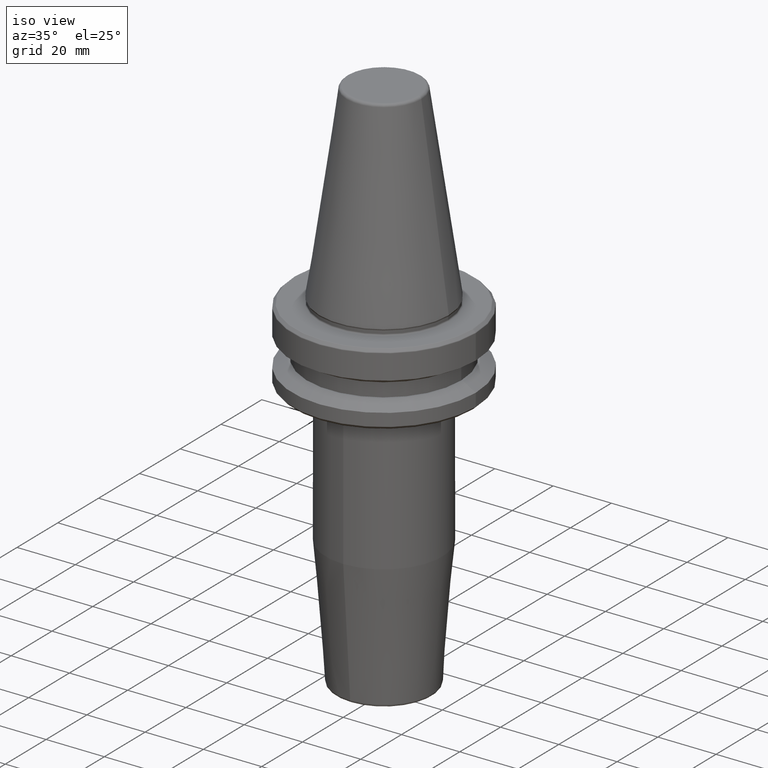
[diagram: clean part render]
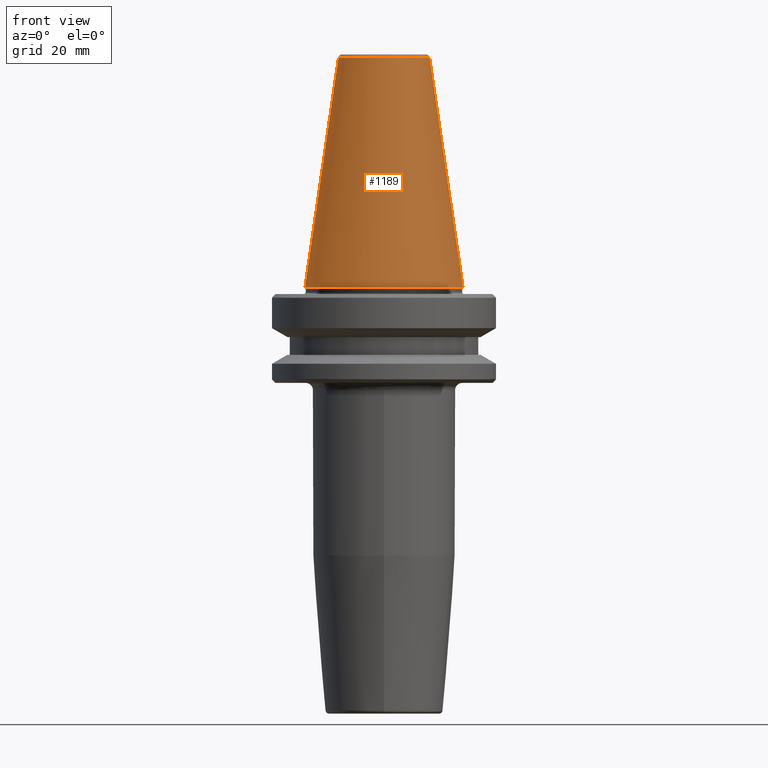
[diagram: tour spotlight — one face highlighted and labeled with its STEP entity id]
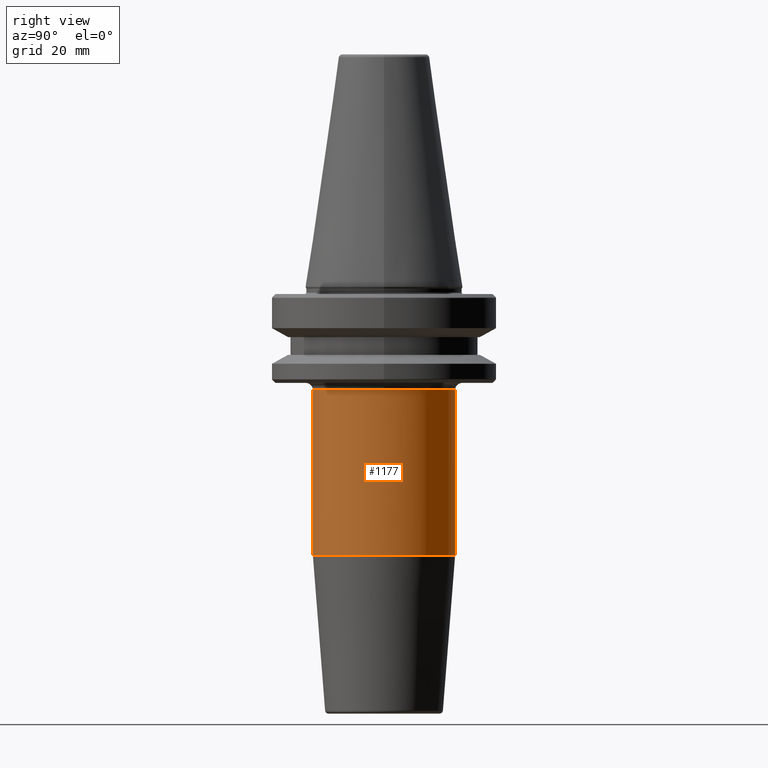
[diagram: tour spotlight — one face highlighted and labeled with its STEP entity id]
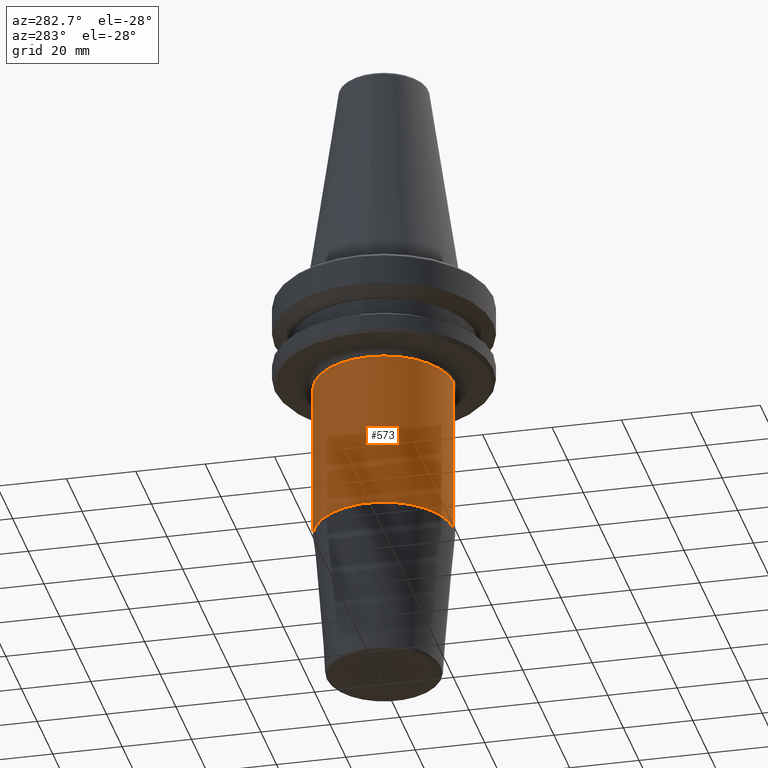
[diagram: tour spotlight — one face highlighted and labeled with its STEP entity id]
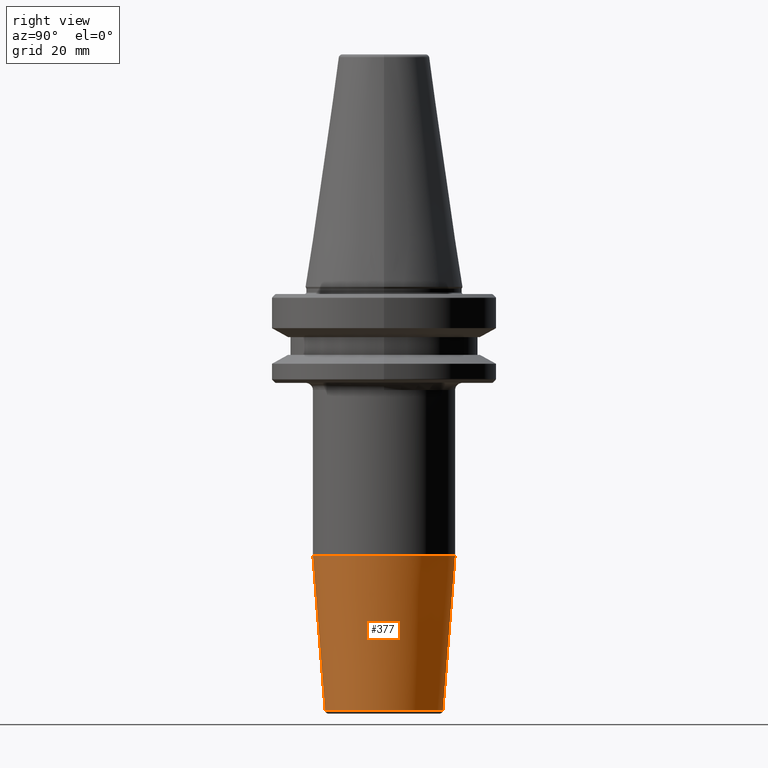
[diagram: tour spotlight — one face highlighted and labeled with its STEP entity id]
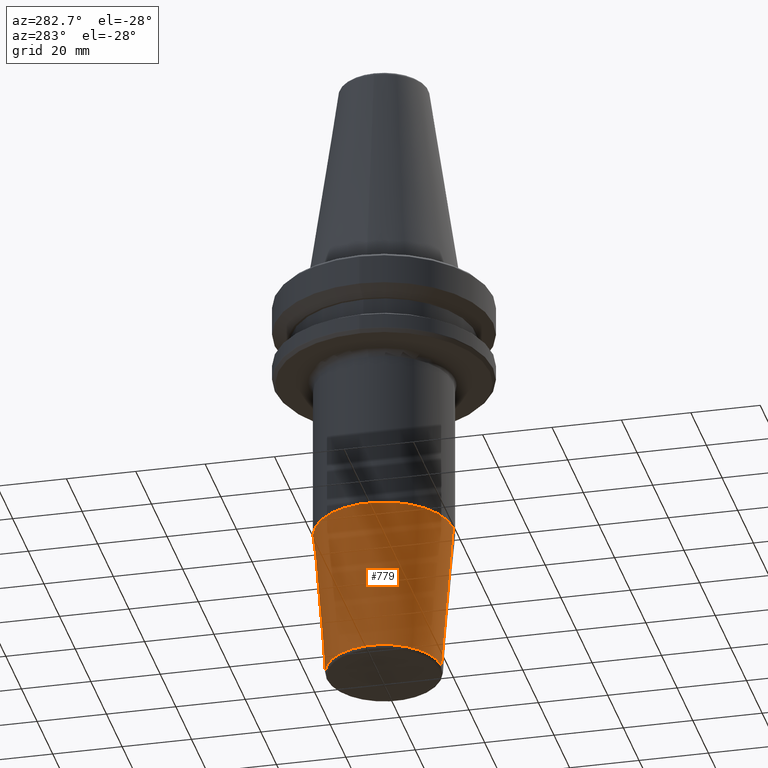
[diagram: tour spotlight — one face highlighted and labeled with its STEP entity id]
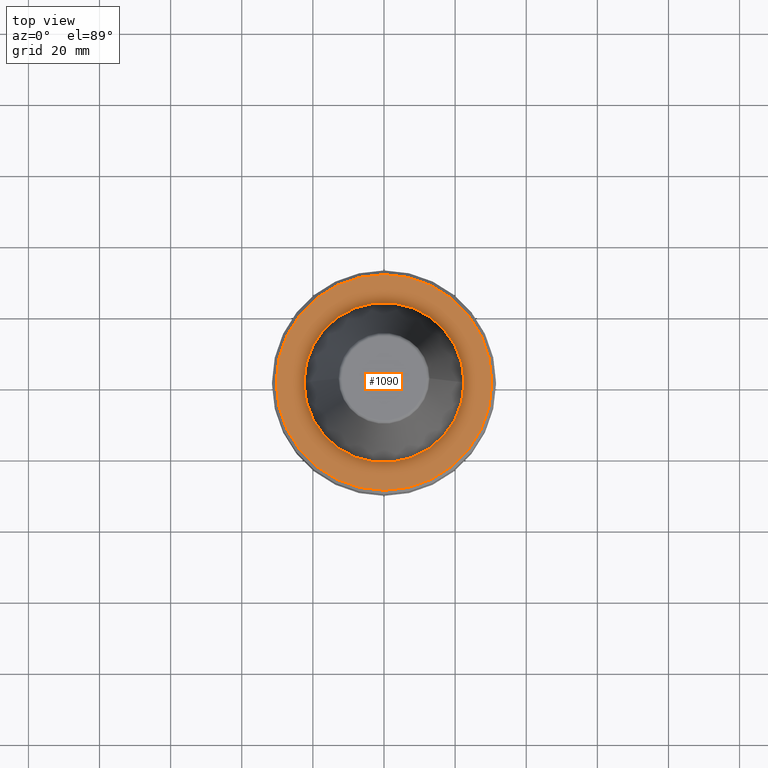
[diagram: tour spotlight — one face highlighted and labeled with its STEP entity id]
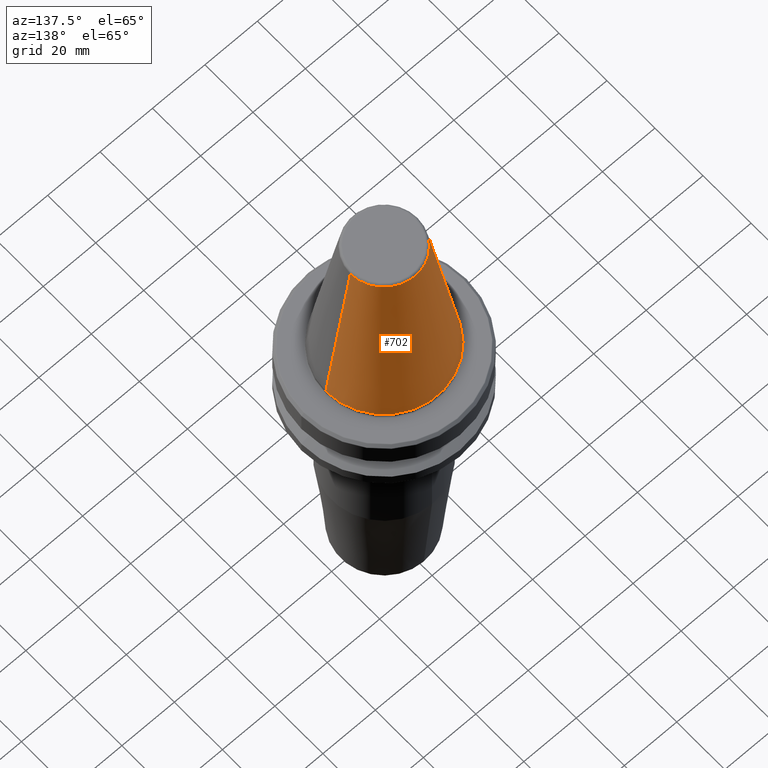
[diagram: tour spotlight — one face highlighted and labeled with its STEP entity id]
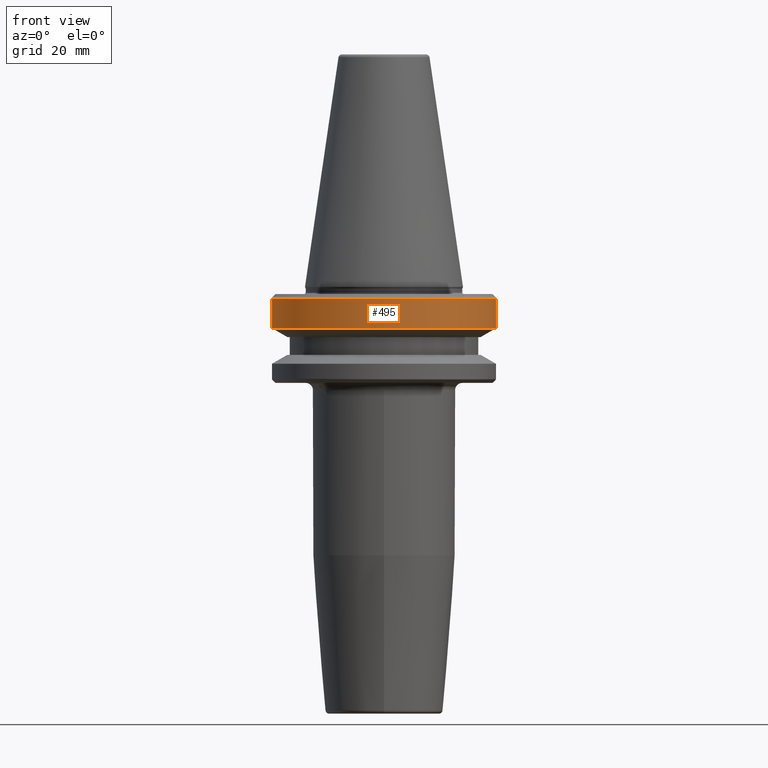
[diagram: tour spotlight — one face highlighted and labeled with its STEP entity id]
A machine part: a face-by-face anatomy tour. The part has 46 B-rep faces; the first image is the clean iso view, then the 8 largest visible faces are spotlighted one at a time (largest first), each with its STEP entity span.

Face 1 — front view, entity #1189. In plain terms, the highlighted conical surface has half-angle 8.297 deg.
Definition (entity closure, byte-faithful):
#83 = DIRECTION ( 'NONE',  ( 1.000000000000000000, 0.0000000000000000000, 0.0000000000000000000 ) ) ;
#159 = EDGE_CURVE ( 'NONE', #1194, #642, #989, .T. ) ;
#174 = ORIENTED_EDGE ( 'NONE', *, *, #1180, .F. ) ;
#178 = CARTESIAN_POINT ( 'NONE',  ( 12.81219950706224800, 2.145409711370550300E-015, 64.54430822726730800 ) ) ;
#190 = DIRECTION ( 'NONE',  ( 0.1443082272673071000, 1.767266086135364600E-017, -0.9895327864921743500 ) ) ;
#215 = CIRCLE ( 'NONE', #310, 12.81219950706224800 ) ;
#241 = AXIS2_PLACEMENT_3D ( 'NONE', #1065, #866, #1166 ) ;
#258 = DIRECTION ( 'NONE',  ( -0.1443082272673071000, 0.0000000000000000000, -0.9895327864921743500 ) ) ;
#310 = AXIS2_PLACEMENT_3D ( 'NONE', #567, #670, #83 ) ;
#342 = DIRECTION ( 'NONE',  ( 1.000000000000000000, 0.0000000000000000000, 0.0000000000000000000 ) ) ;
#344 = EDGE_LOOP ( 'NONE', ( #1028, #174, #833, #827 ) ) ;
#389 = CIRCLE ( 'NONE', #644, 22.22500000000000500 ) ;
#406 = CONICAL_SURFACE ( 'NONE', #241, 12.81219950706224800, 0.1448138465474191100 ) ;
#514 = CARTESIAN_POINT ( 'NONE',  ( -22.22500000000000500, 2.721777511104993200E-015, 0.0000000000000000000 ) ) ;
#547 = CARTESIAN_POINT ( 'NONE',  ( 0.0000000000000000000, 0.0000000000000000000, 0.0000000000000000000 ) ) ;
#567 = CARTESIAN_POINT ( 'NONE',  ( 0.0000000000000000000, 0.0000000000000000000, 64.54430822726730800 ) ) ;
#642 = VERTEX_POINT ( 'NONE', #1126 ) ;
#644 = AXIS2_PLACEMENT_3D ( 'NONE', #547, #837, #342 ) ;
#670 = DIRECTION ( 'NONE',  ( -0.0000000000000000000, -0.0000000000000000000, 1.000000000000000000 ) ) ;
#683 = VERTEX_POINT ( 'NONE', #514 ) ;
#718 = EDGE_CURVE ( 'NONE', #683, #642, #389, .T. ) ;
#827 = ORIENTED_EDGE ( 'NONE', *, *, #718, .T. ) ;
#833 = ORIENTED_EDGE ( 'NONE', *, *, #1272, .T. ) ;
#837 = DIRECTION ( 'NONE',  ( -0.0000000000000000000, -0.0000000000000000000, 1.000000000000000000 ) ) ;
#866 = DIRECTION ( 'NONE',  ( 0.0000000000000000000, 0.0000000000000000000, -1.000000000000000000 ) ) ;
#875 = VECTOR ( 'NONE', #258, 1000.000000000000000 ) ;
#878 = VERTEX_POINT ( 'NONE', #1120 ) ;
#883 = CARTESIAN_POINT ( 'NONE',  ( -12.81219950706224800, 0.0000000000000000000, 64.54430822726730800 ) ) ;
#886 = CARTESIAN_POINT ( 'NONE',  ( 12.81219950706224800, 1.569041911636107800E-015, 64.54430822726730800 ) ) ;
#989 = LINE ( 'NONE', #886, #1158 ) ;
#1028 = ORIENTED_EDGE ( 'NONE', *, *, #159, .F. ) ;
#1065 = CARTESIAN_POINT ( 'NONE',  ( 0.0000000000000000000, 0.0000000000000000000, 64.54430822726730800 ) ) ;
#1120 = CARTESIAN_POINT ( 'NONE',  ( -12.81219950706224800, 0.0000000000000000000, 64.54430822726730800 ) ) ;
#1126 = CARTESIAN_POINT ( 'NONE',  ( 22.22500000000000500, 0.0000000000000000000, 0.0000000000000000000 ) ) ;
#1143 = LINE ( 'NONE', #883, #875 ) ;
#1158 = VECTOR ( 'NONE', #190, 1000.000000000000000 ) ;
#1166 = DIRECTION ( 'NONE',  ( -1.000000000000000000, 0.0000000000000000000, 0.0000000000000000000 ) ) ;
#1180 = EDGE_CURVE ( 'NONE', #878, #1194, #215, .T. ) ;
#1189 = ADVANCED_FACE ( 'NONE', ( #1233 ), #406, .T. ) ;
#1194 = VERTEX_POINT ( 'NONE', #178 ) ;
#1233 = FACE_OUTER_BOUND ( 'NONE', #344, .T. ) ;
#1272 = EDGE_CURVE ( 'NONE', #878, #683, #1143, .T. ) ;

Face 2 — right view, entity #1177. In plain terms, the highlighted cylindrical surface (partial cylindrical patch) has radius 20 mm, axis along (-0, 0, -1).
Definition (entity closure, byte-faithful):
#17 = CIRCLE ( 'NONE', #621, 19.99999999999999600 ) ;
#46 = VECTOR ( 'NONE', #1045, 1000.000000000000000 ) ;
#49 = ORIENTED_EDGE ( 'NONE', *, *, #316, .T. ) ;
#134 = EDGE_LOOP ( 'NONE', ( #968, #49, #1183, #224, #701 ) ) ;
#212 = CARTESIAN_POINT ( 'NONE',  ( 0.0000000000000000000, 20.00000000000000000, -120.0000000000000000 ) ) ;
#224 = ORIENTED_EDGE ( 'NONE', *, *, #512, .F. ) ;
#251 = EDGE_CURVE ( 'NONE', #1044, #1018, #557, .T. ) ;
#267 = AXIS2_PLACEMENT_3D ( 'NONE', #345, #1240, #1043 ) ;
#273 = CARTESIAN_POINT ( 'NONE',  ( 0.0000000000000000000, -19.99999999999999600, -75.52828342338060000 ) ) ;
#278 = CARTESIAN_POINT ( 'NONE',  ( 2.449293598294706100E-015, -19.99999999999999300, -120.0000000000000000 ) ) ;
#316 = EDGE_CURVE ( 'NONE', #556, #419, #737, .T. ) ;
#345 = CARTESIAN_POINT ( 'NONE',  ( 0.0000000000000000000, 2.683935798309098700E-015, -75.52828342338060000 ) ) ;
#360 = AXIS2_PLACEMENT_3D ( 'NONE', #662, #455, #966 ) ;
#362 = DIRECTION ( 'NONE',  ( -0.0000000000000000000, 5.530662963891274600E-017, -1.000000000000000000 ) ) ;
#408 = LINE ( 'NONE', #278, #1171 ) ;
#419 = VERTEX_POINT ( 'NONE', #976 ) ;
#429 = CARTESIAN_POINT ( 'NONE',  ( 0.0000000000000000000, 1.106132592778247800E-016, -28.99999999999999600 ) ) ;
#432 = CYLINDRICAL_SURFACE ( 'NONE', #360, 19.99999999999999600 ) ;
#441 = EDGE_CURVE ( 'NONE', #419, #736, #408, .T. ) ;
#455 = DIRECTION ( 'NONE',  ( -0.0000000000000000000, 5.530662963891274600E-017, -1.000000000000000000 ) ) ;
#465 = FACE_OUTER_BOUND ( 'NONE', #134, .T. ) ;
#512 = EDGE_CURVE ( 'NONE', #1018, #736, #1079, .T. ) ;
#550 = DIRECTION ( 'NONE',  ( 0.0000000000000000000, 0.0000000000000000000, -1.000000000000000000 ) ) ;
#556 = VERTEX_POINT ( 'NONE', #869 ) ;
#557 = LINE ( 'NONE', #212, #46 ) ;
#621 = AXIS2_PLACEMENT_3D ( 'NONE', #730, #550, #841 ) ;
#630 = AXIS2_PLACEMENT_3D ( 'NONE', #429, #838, #1135 ) ;
#662 = CARTESIAN_POINT ( 'NONE',  ( 0.0000000000000000000, 5.143516556418884100E-015, -120.0000000000000000 ) ) ;
#701 = ORIENTED_EDGE ( 'NONE', *, *, #251, .F. ) ;
#730 = CARTESIAN_POINT ( 'NONE',  ( 0.0000000000000000000, 1.106132592778247800E-016, -28.99999999999999600 ) ) ;
#736 = VERTEX_POINT ( 'NONE', #273 ) ;
#737 = CIRCLE ( 'NONE', #630, 19.99999999999999600 ) ;
#838 = DIRECTION ( 'NONE',  ( 0.0000000000000000000, 0.0000000000000000000, -1.000000000000000000 ) ) ;
#841 = DIRECTION ( 'NONE',  ( -1.000000000000000000, 0.0000000000000000000, 0.0000000000000000000 ) ) ;
#869 = CARTESIAN_POINT ( 'NONE',  ( 19.99999999999999600, 2.682371537487266200E-015, -28.99999999999999600 ) ) ;
#870 = EDGE_CURVE ( 'NONE', #1044, #556, #17, .T. ) ;
#966 = DIRECTION ( 'NONE',  ( 0.0000000000000000000, 1.000000000000000000, 0.0000000000000000000 ) ) ;
#968 = ORIENTED_EDGE ( 'NONE', *, *, #870, .T. ) ;
#976 = CARTESIAN_POINT ( 'NONE',  ( 2.449293598294706100E-015, -19.99999999999999600, -28.99999999999999600 ) ) ;
#1018 = VERTEX_POINT ( 'NONE', #1078 ) ;
#1043 = DIRECTION ( 'NONE',  ( 0.0000000000000000000, 1.000000000000000000, 0.0000000000000000000 ) ) ;
#1044 = VERTEX_POINT ( 'NONE', #1047 ) ;
#1045 = DIRECTION ( 'NONE',  ( -0.0000000000000000000, 5.530662963891274600E-017, -1.000000000000000000 ) ) ;
#1047 = CARTESIAN_POINT ( 'NONE',  ( 0.0000000000000000000, 19.99999999999999600, -28.99999999999999600 ) ) ;
#1078 = CARTESIAN_POINT ( 'NONE',  ( 2.449293598294706100E-015, 19.99999999999999600, -75.52828342338060000 ) ) ;
#1079 = CIRCLE ( 'NONE', #267, 20.00000000000000000 ) ;
#1135 = DIRECTION ( 'NONE',  ( -1.000000000000000000, 0.0000000000000000000, 0.0000000000000000000 ) ) ;
#1171 = VECTOR ( 'NONE', #362, 1000.000000000000000 ) ;
#1177 = ADVANCED_FACE ( 'NONE', ( #465 ), #432, .T. ) ;
#1183 = ORIENTED_EDGE ( 'NONE', *, *, #441, .T. ) ;
#1240 = DIRECTION ( 'NONE',  ( -0.0000000000000000000, 5.530662963891274600E-017, -1.000000000000000000 ) ) ;

Face 3 — auxiliary view, entity #573. In plain terms, the highlighted cylindrical surface (partial cylindrical patch) has radius 20 mm, axis along (-0, 0, -1).
Definition (entity closure, byte-faithful):
#5 = DIRECTION ( 'NONE',  ( 0.0000000000000000000, 1.000000000000000000, 0.0000000000000000000 ) ) ;
#46 = VECTOR ( 'NONE', #1045, 1000.000000000000000 ) ;
#124 = ORIENTED_EDGE ( 'NONE', *, *, #1273, .F. ) ;
#126 = CIRCLE ( 'NONE', #765, 20.00000000000000000 ) ;
#212 = CARTESIAN_POINT ( 'NONE',  ( 0.0000000000000000000, 20.00000000000000000, -120.0000000000000000 ) ) ;
#232 = CARTESIAN_POINT ( 'NONE',  ( 0.0000000000000000000, 1.106132592778247800E-016, -28.99999999999999600 ) ) ;
#251 = EDGE_CURVE ( 'NONE', #1044, #1018, #557, .T. ) ;
#253 = EDGE_CURVE ( 'NONE', #1192, #1044, #308, .T. ) ;
#273 = CARTESIAN_POINT ( 'NONE',  ( 0.0000000000000000000, -19.99999999999999600, -75.52828342338060000 ) ) ;
#278 = CARTESIAN_POINT ( 'NONE',  ( 2.449293598294706100E-015, -19.99999999999999300, -120.0000000000000000 ) ) ;
#285 = CARTESIAN_POINT ( 'NONE',  ( 0.0000000000000000000, 2.683935798309098700E-015, -75.52828342338060000 ) ) ;
#294 = ORIENTED_EDGE ( 'NONE', *, *, #251, .T. ) ;
#308 = CIRCLE ( 'NONE', #492, 19.99999999999999600 ) ;
#324 = ORIENTED_EDGE ( 'NONE', *, *, #441, .F. ) ;
#362 = DIRECTION ( 'NONE',  ( -0.0000000000000000000, 5.530662963891274600E-017, -1.000000000000000000 ) ) ;
#408 = LINE ( 'NONE', #278, #1171 ) ;
#419 = VERTEX_POINT ( 'NONE', #976 ) ;
#441 = EDGE_CURVE ( 'NONE', #419, #736, #408, .T. ) ;
#492 = AXIS2_PLACEMENT_3D ( 'NONE', #640, #694, #996 ) ;
#557 = LINE ( 'NONE', #212, #46 ) ;
#568 = CARTESIAN_POINT ( 'NONE',  ( 0.0000000000000000000, 5.143516556418884100E-015, -120.0000000000000000 ) ) ;
#573 = ADVANCED_FACE ( 'NONE', ( #1280 ), #747, .T. ) ;
#586 = DIRECTION ( 'NONE',  ( -0.0000000000000000000, 5.530662963891274600E-017, -1.000000000000000000 ) ) ;
#606 = EDGE_CURVE ( 'NONE', #419, #1192, #988, .T. ) ;
#640 = CARTESIAN_POINT ( 'NONE',  ( 0.0000000000000000000, 1.106132592778247800E-016, -28.99999999999999600 ) ) ;
#694 = DIRECTION ( 'NONE',  ( 0.0000000000000000000, 0.0000000000000000000, -1.000000000000000000 ) ) ;
#736 = VERTEX_POINT ( 'NONE', #273 ) ;
#745 = ORIENTED_EDGE ( 'NONE', *, *, #606, .T. ) ;
#747 = CYLINDRICAL_SURFACE ( 'NONE', #938, 19.99999999999999600 ) ;
#765 = AXIS2_PLACEMENT_3D ( 'NONE', #285, #586, #5 ) ;
#813 = DIRECTION ( 'NONE',  ( 0.0000000000000000000, 1.000000000000000000, 0.0000000000000000000 ) ) ;
#828 = DIRECTION ( 'NONE',  ( -1.000000000000000000, 0.0000000000000000000, 0.0000000000000000000 ) ) ;
#867 = AXIS2_PLACEMENT_3D ( 'NONE', #232, #933, #828 ) ;
#933 = DIRECTION ( 'NONE',  ( 0.0000000000000000000, 0.0000000000000000000, -1.000000000000000000 ) ) ;
#938 = AXIS2_PLACEMENT_3D ( 'NONE', #568, #1144, #813 ) ;
#976 = CARTESIAN_POINT ( 'NONE',  ( 2.449293598294706100E-015, -19.99999999999999600, -28.99999999999999600 ) ) ;
#988 = CIRCLE ( 'NONE', #867, 19.99999999999999600 ) ;
#996 = DIRECTION ( 'NONE',  ( -1.000000000000000000, 0.0000000000000000000, 0.0000000000000000000 ) ) ;
#1018 = VERTEX_POINT ( 'NONE', #1078 ) ;
#1044 = VERTEX_POINT ( 'NONE', #1047 ) ;
#1045 = DIRECTION ( 'NONE',  ( -0.0000000000000000000, 5.530662963891274600E-017, -1.000000000000000000 ) ) ;
#1047 = CARTESIAN_POINT ( 'NONE',  ( 0.0000000000000000000, 19.99999999999999600, -28.99999999999999600 ) ) ;
#1078 = CARTESIAN_POINT ( 'NONE',  ( 2.449293598294706100E-015, 19.99999999999999600, -75.52828342338060000 ) ) ;
#1144 = DIRECTION ( 'NONE',  ( -0.0000000000000000000, 5.530662963891274600E-017, -1.000000000000000000 ) ) ;
#1162 = EDGE_LOOP ( 'NONE', ( #324, #745, #1165, #294, #124 ) ) ;
#1165 = ORIENTED_EDGE ( 'NONE', *, *, #253, .T. ) ;
#1171 = VECTOR ( 'NONE', #362, 1000.000000000000000 ) ;
#1192 = VERTEX_POINT ( 'NONE', #1267 ) ;
#1267 = CARTESIAN_POINT ( 'NONE',  ( -19.99999999999999600, 1.106132592778247800E-016, -28.99999999999999600 ) ) ;
#1273 = EDGE_CURVE ( 'NONE', #736, #1018, #126, .T. ) ;
#1280 = FACE_OUTER_BOUND ( 'NONE', #1162, .T. ) ;

Face 4 — right view, entity #377. In plain terms, the highlighted conical surface has half-angle 4.5 deg.
Definition (entity closure, byte-faithful):
#9 = EDGE_CURVE ( 'NONE', #1029, #736, #521, .T. ) ;
#120 = DIRECTION ( 'NONE',  ( -0.0000000000000000000, 5.530662963891274600E-017, -1.000000000000000000 ) ) ;
#147 = VERTEX_POINT ( 'NONE', #485 ) ;
#186 = DIRECTION ( 'NONE',  ( 0.0000000000000000000, -1.000000000000000000, 0.0000000000000000000 ) ) ;
#211 = EDGE_CURVE ( 'NONE', #147, #1029, #333, .T. ) ;
#227 = ORIENTED_EDGE ( 'NONE', *, *, #512, .T. ) ;
#257 = VECTOR ( 'NONE', #509, 1000.000000000000100 ) ;
#267 = AXIS2_PLACEMENT_3D ( 'NONE', #345, #1240, #1043 ) ;
#273 = CARTESIAN_POINT ( 'NONE',  ( 0.0000000000000000000, -19.99999999999999600, -75.52828342338060000 ) ) ;
#284 = LINE ( 'NONE', #972, #520 ) ;
#296 = AXIS2_PLACEMENT_3D ( 'NONE', #710, #120, #1108 ) ;
#333 = CIRCLE ( 'NONE', #296, 16.57252684207490400 ) ;
#345 = CARTESIAN_POINT ( 'NONE',  ( 0.0000000000000000000, 2.683935798309098700E-015, -75.52828342338060000 ) ) ;
#377 = ADVANCED_FACE ( 'NONE', ( #971 ), #671, .T. ) ;
#485 = CARTESIAN_POINT ( 'NONE',  ( 0.0000000000000000000, 16.57252684207491100, -119.0784590957278200 ) ) ;
#509 = DIRECTION ( 'NONE',  ( 0.0000000000000000000, -0.07845909572783114900, 0.9969173337331289600 ) ) ;
#512 = EDGE_CURVE ( 'NONE', #1018, #736, #1079, .T. ) ;
#520 = VECTOR ( 'NONE', #766, 1000.000000000000100 ) ;
#521 = LINE ( 'NONE', #1010, #257 ) ;
#541 = ORIENTED_EDGE ( 'NONE', *, *, #211, .F. ) ;
#572 = EDGE_CURVE ( 'NONE', #147, #1018, #284, .T. ) ;
#671 = CONICAL_SURFACE ( 'NONE', #1230, 16.57252684207490400, 0.07853981633973093600 ) ;
#695 = EDGE_LOOP ( 'NONE', ( #541, #1054, #227, #912 ) ) ;
#710 = CARTESIAN_POINT ( 'NONE',  ( 0.0000000000000000000, 5.092549234929195400E-015, -119.0784590957278200 ) ) ;
#736 = VERTEX_POINT ( 'NONE', #273 ) ;
#756 = DIRECTION ( 'NONE',  ( 0.0000000000000000000, -5.530662963891274600E-017, 1.000000000000000000 ) ) ;
#766 = DIRECTION ( 'NONE',  ( 9.608468044708411000E-018, 0.07845909572783103800, 0.9969173337331289600 ) ) ;
#912 = ORIENTED_EDGE ( 'NONE', *, *, #9, .F. ) ;
#971 = FACE_OUTER_BOUND ( 'NONE', #695, .T. ) ;
#972 = CARTESIAN_POINT ( 'NONE',  ( 2.029549195093062500E-015, 16.57252684207490700, -119.0784590957278200 ) ) ;
#980 = CARTESIAN_POINT ( 'NONE',  ( 2.029549195093062900E-015, -16.57252684207490000, -119.0784590957278200 ) ) ;
#1010 = CARTESIAN_POINT ( 'NONE',  ( 0.0000000000000000000, -16.57252684207490000, -119.0784590957278200 ) ) ;
#1018 = VERTEX_POINT ( 'NONE', #1078 ) ;
#1029 = VERTEX_POINT ( 'NONE', #980 ) ;
#1043 = DIRECTION ( 'NONE',  ( 0.0000000000000000000, 1.000000000000000000, 0.0000000000000000000 ) ) ;
#1054 = ORIENTED_EDGE ( 'NONE', *, *, #572, .T. ) ;
#1078 = CARTESIAN_POINT ( 'NONE',  ( 2.449293598294706100E-015, 19.99999999999999600, -75.52828342338060000 ) ) ;
#1079 = CIRCLE ( 'NONE', #267, 20.00000000000000000 ) ;
#1108 = DIRECTION ( 'NONE',  ( 0.0000000000000000000, 1.000000000000000000, 0.0000000000000000000 ) ) ;
#1230 = AXIS2_PLACEMENT_3D ( 'NONE', #1270, #756, #186 ) ;
#1240 = DIRECTION ( 'NONE',  ( -0.0000000000000000000, 5.530662963891274600E-017, -1.000000000000000000 ) ) ;
#1270 = CARTESIAN_POINT ( 'NONE',  ( 0.0000000000000000000, 5.092549234929195400E-015, -119.0784590957278200 ) ) ;

Face 5 — auxiliary view, entity #779. In plain terms, the highlighted conical surface has half-angle 4.5 deg.
Definition (entity closure, byte-faithful):
#5 = DIRECTION ( 'NONE',  ( 0.0000000000000000000, 1.000000000000000000, 0.0000000000000000000 ) ) ;
#9 = EDGE_CURVE ( 'NONE', #1029, #736, #521, .T. ) ;
#45 = AXIS2_PLACEMENT_3D ( 'NONE', #359, #649, #1063 ) ;
#70 = FACE_OUTER_BOUND ( 'NONE', #1008, .T. ) ;
#126 = CIRCLE ( 'NONE', #765, 20.00000000000000000 ) ;
#147 = VERTEX_POINT ( 'NONE', #485 ) ;
#157 = ORIENTED_EDGE ( 'NONE', *, *, #572, .F. ) ;
#257 = VECTOR ( 'NONE', #509, 1000.000000000000100 ) ;
#273 = CARTESIAN_POINT ( 'NONE',  ( 0.0000000000000000000, -19.99999999999999600, -75.52828342338060000 ) ) ;
#284 = LINE ( 'NONE', #972, #520 ) ;
#285 = CARTESIAN_POINT ( 'NONE',  ( 0.0000000000000000000, 2.683935798309098700E-015, -75.52828342338060000 ) ) ;
#359 = CARTESIAN_POINT ( 'NONE',  ( 0.0000000000000000000, 5.092549234929195400E-015, -119.0784590957278200 ) ) ;
#437 = DIRECTION ( 'NONE',  ( 0.0000000000000000000, -1.000000000000000000, 0.0000000000000000000 ) ) ;
#485 = CARTESIAN_POINT ( 'NONE',  ( 0.0000000000000000000, 16.57252684207491100, -119.0784590957278200 ) ) ;
#509 = DIRECTION ( 'NONE',  ( 0.0000000000000000000, -0.07845909572783114900, 0.9969173337331289600 ) ) ;
#520 = VECTOR ( 'NONE', #766, 1000.000000000000100 ) ;
#521 = LINE ( 'NONE', #1010, #257 ) ;
#572 = EDGE_CURVE ( 'NONE', #147, #1018, #284, .T. ) ;
#586 = DIRECTION ( 'NONE',  ( -0.0000000000000000000, 5.530662963891274600E-017, -1.000000000000000000 ) ) ;
#622 = ORIENTED_EDGE ( 'NONE', *, *, #1146, .F. ) ;
#649 = DIRECTION ( 'NONE',  ( -0.0000000000000000000, 5.530662963891274600E-017, -1.000000000000000000 ) ) ;
#729 = DIRECTION ( 'NONE',  ( 0.0000000000000000000, -5.530662963891274600E-017, 1.000000000000000000 ) ) ;
#736 = VERTEX_POINT ( 'NONE', #273 ) ;
#765 = AXIS2_PLACEMENT_3D ( 'NONE', #285, #586, #5 ) ;
#766 = DIRECTION ( 'NONE',  ( 9.608468044708411000E-018, 0.07845909572783103800, 0.9969173337331289600 ) ) ;
#779 = ADVANCED_FACE ( 'NONE', ( #70 ), #801, .T. ) ;
#801 = CONICAL_SURFACE ( 'NONE', #978, 16.57252684207490400, 0.07853981633973093600 ) ;
#815 = ORIENTED_EDGE ( 'NONE', *, *, #1273, .T. ) ;
#821 = CARTESIAN_POINT ( 'NONE',  ( 0.0000000000000000000, 5.092549234929195400E-015, -119.0784590957278200 ) ) ;
#964 = ORIENTED_EDGE ( 'NONE', *, *, #9, .T. ) ;
#972 = CARTESIAN_POINT ( 'NONE',  ( 2.029549195093062500E-015, 16.57252684207490700, -119.0784590957278200 ) ) ;
#978 = AXIS2_PLACEMENT_3D ( 'NONE', #821, #729, #437 ) ;
#980 = CARTESIAN_POINT ( 'NONE',  ( 2.029549195093062900E-015, -16.57252684207490000, -119.0784590957278200 ) ) ;
#1008 = EDGE_LOOP ( 'NONE', ( #157, #622, #964, #815 ) ) ;
#1010 = CARTESIAN_POINT ( 'NONE',  ( 0.0000000000000000000, -16.57252684207490000, -119.0784590957278200 ) ) ;
#1018 = VERTEX_POINT ( 'NONE', #1078 ) ;
#1029 = VERTEX_POINT ( 'NONE', #980 ) ;
#1059 = CIRCLE ( 'NONE', #45, 16.57252684207490400 ) ;
#1063 = DIRECTION ( 'NONE',  ( 0.0000000000000000000, 1.000000000000000000, 0.0000000000000000000 ) ) ;
#1078 = CARTESIAN_POINT ( 'NONE',  ( 2.449293598294706100E-015, 19.99999999999999600, -75.52828342338060000 ) ) ;
#1146 = EDGE_CURVE ( 'NONE', #1029, #147, #1059, .T. ) ;
#1273 = EDGE_CURVE ( 'NONE', #736, #1018, #126, .T. ) ;

Face 6 — top view, entity #1090. In plain terms, the highlighted planar face has unit normal (0, -0, 1).
Definition (entity closure, byte-faithful):
#42 = FACE_OUTER_BOUND ( 'NONE', #1253, .T. ) ;
#63 = DIRECTION ( 'NONE',  ( 0.0000000000000000000, -0.0000000000000000000, 1.000000000000000000 ) ) ;
#66 = DIRECTION ( 'NONE',  ( -0.0000000000000000000, -0.0000000000000000000, 1.000000000000000000 ) ) ;
#101 = CARTESIAN_POINT ( 'NONE',  ( 30.33431457505076200, 0.0000000000000000000, -2.000000000000001800 ) ) ;
#130 = EDGE_CURVE ( 'NONE', #763, #499, #655, .T. ) ;
#172 = VERTEX_POINT ( 'NONE', #101 ) ;
#216 = CIRCLE ( 'NONE', #748, 30.33431457505076200 ) ;
#225 = CARTESIAN_POINT ( 'NONE',  ( 0.0000000000000000000, 0.0000000000000000000, -2.000000000000001800 ) ) ;
#280 = DIRECTION ( 'NONE',  ( 1.000000000000000000, 0.0000000000000000000, 0.0000000000000000000 ) ) ;
#290 = DIRECTION ( 'NONE',  ( 1.000000000000000000, 0.0000000000000000000, 0.0000000000000000000 ) ) ;
#341 = EDGE_LOOP ( 'NONE', ( #435, #851 ) ) ;
#350 = CARTESIAN_POINT ( 'NONE',  ( 0.0000000000000000000, 0.0000000000000000000, -2.000000000000002700 ) ) ;
#372 = DIRECTION ( 'NONE',  ( -0.0000000000000000000, -0.0000000000000000000, 1.000000000000000000 ) ) ;
#383 = CARTESIAN_POINT ( 'NONE',  ( 0.0000000000000000000, 0.0000000000000000000, -2.000000000000001800 ) ) ;
#435 = ORIENTED_EDGE ( 'NONE', *, *, #130, .F. ) ;
#444 = DIRECTION ( 'NONE',  ( 1.000000000000000000, 0.0000000000000000000, 0.0000000000000000000 ) ) ;
#499 = VERTEX_POINT ( 'NONE', #885 ) ;
#542 = ORIENTED_EDGE ( 'NONE', *, *, #1214, .T. ) ;
#544 = CARTESIAN_POINT ( 'NONE',  ( 0.0000000000000000000, 0.0000000000000000000, -2.000000000000001800 ) ) ;
#561 = AXIS2_PLACEMENT_3D ( 'NONE', #977, #372, #280 ) ;
#580 = ORIENTED_EDGE ( 'NONE', *, *, #895, .T. ) ;
#655 = CIRCLE ( 'NONE', #1051, 22.50000000000000000 ) ;
#708 = CIRCLE ( 'NONE', #561, 30.33431457505076200 ) ;
#748 = AXIS2_PLACEMENT_3D ( 'NONE', #225, #1265, #947 ) ;
#754 = DIRECTION ( 'NONE',  ( 1.000000000000000000, 0.0000000000000000000, 0.0000000000000000000 ) ) ;
#763 = VERTEX_POINT ( 'NONE', #1032 ) ;
#784 = DIRECTION ( 'NONE',  ( -0.0000000000000000000, -0.0000000000000000000, 1.000000000000000000 ) ) ;
#800 = FACE_BOUND ( 'NONE', #341, .T. ) ;
#851 = ORIENTED_EDGE ( 'NONE', *, *, #1102, .F. ) ;
#885 = CARTESIAN_POINT ( 'NONE',  ( -22.50000000000000000, 2.755455298081544800E-015, -2.000000000000001300 ) ) ;
#895 = EDGE_CURVE ( 'NONE', #172, #1129, #216, .T. ) ;
#947 = DIRECTION ( 'NONE',  ( 1.000000000000000000, 0.0000000000000000000, 0.0000000000000000000 ) ) ;
#960 = CARTESIAN_POINT ( 'NONE',  ( -30.33431457505076200, 3.732201245991191800E-015, -2.000000000000001800 ) ) ;
#977 = CARTESIAN_POINT ( 'NONE',  ( 0.0000000000000000000, 0.0000000000000000000, -2.000000000000001800 ) ) ;
#999 = AXIS2_PLACEMENT_3D ( 'NONE', #350, #63, #444 ) ;
#1032 = CARTESIAN_POINT ( 'NONE',  ( 22.50000000000000000, 0.0000000000000000000, -2.000000000000001300 ) ) ;
#1036 = CIRCLE ( 'NONE', #1057, 22.50000000000000000 ) ;
#1051 = AXIS2_PLACEMENT_3D ( 'NONE', #383, #784, #290 ) ;
#1057 = AXIS2_PLACEMENT_3D ( 'NONE', #544, #66, #754 ) ;
#1090 = ADVANCED_FACE ( 'NONE', ( #42, #800 ), #1151, .T. ) ;
#1102 = EDGE_CURVE ( 'NONE', #499, #763, #1036, .T. ) ;
#1129 = VERTEX_POINT ( 'NONE', #960 ) ;
#1151 = PLANE ( 'NONE',  #999 ) ;
#1214 = EDGE_CURVE ( 'NONE', #1129, #172, #708, .T. ) ;
#1253 = EDGE_LOOP ( 'NONE', ( #580, #542 ) ) ;
#1265 = DIRECTION ( 'NONE',  ( -0.0000000000000000000, -0.0000000000000000000, 1.000000000000000000 ) ) ;

Face 7 — auxiliary view, entity #702. In plain terms, the highlighted conical surface has half-angle 8.297 deg.
Definition (entity closure, byte-faithful):
#50 = AXIS2_PLACEMENT_3D ( 'NONE', #329, #1229, #673 ) ;
#159 = EDGE_CURVE ( 'NONE', #1194, #642, #989, .T. ) ;
#178 = CARTESIAN_POINT ( 'NONE',  ( 12.81219950706224800, 2.145409711370550300E-015, 64.54430822726730800 ) ) ;
#190 = DIRECTION ( 'NONE',  ( 0.1443082272673071000, 1.767266086135364600E-017, -0.9895327864921743500 ) ) ;
#213 = ORIENTED_EDGE ( 'NONE', *, *, #647, .F. ) ;
#258 = DIRECTION ( 'NONE',  ( -0.1443082272673071000, 0.0000000000000000000, -0.9895327864921743500 ) ) ;
#329 = CARTESIAN_POINT ( 'NONE',  ( 0.0000000000000000000, 0.0000000000000000000, 64.54430822726730800 ) ) ;
#330 = CONICAL_SURFACE ( 'NONE', #367, 12.81219950706224800, 0.1448138465474191100 ) ;
#363 = ORIENTED_EDGE ( 'NONE', *, *, #159, .T. ) ;
#367 = AXIS2_PLACEMENT_3D ( 'NONE', #1021, #742, #410 ) ;
#410 = DIRECTION ( 'NONE',  ( -1.000000000000000000, 0.0000000000000000000, 0.0000000000000000000 ) ) ;
#413 = DIRECTION ( 'NONE',  ( -0.0000000000000000000, -0.0000000000000000000, 1.000000000000000000 ) ) ;
#513 = CARTESIAN_POINT ( 'NONE',  ( 0.0000000000000000000, 0.0000000000000000000, 0.0000000000000000000 ) ) ;
#514 = CARTESIAN_POINT ( 'NONE',  ( -22.22500000000000500, 2.721777511104993200E-015, 0.0000000000000000000 ) ) ;
#616 = DIRECTION ( 'NONE',  ( 1.000000000000000000, 0.0000000000000000000, 0.0000000000000000000 ) ) ;
#642 = VERTEX_POINT ( 'NONE', #1126 ) ;
#647 = EDGE_CURVE ( 'NONE', #1194, #878, #1224, .T. ) ;
#650 = ORIENTED_EDGE ( 'NONE', *, *, #1272, .F. ) ;
#673 = DIRECTION ( 'NONE',  ( 1.000000000000000000, 0.0000000000000000000, 0.0000000000000000000 ) ) ;
#683 = VERTEX_POINT ( 'NONE', #514 ) ;
#702 = ADVANCED_FACE ( 'NONE', ( #929 ), #330, .T. ) ;
#722 = CIRCLE ( 'NONE', #1152, 22.22500000000000500 ) ;
#726 = EDGE_LOOP ( 'NONE', ( #213, #363, #1243, #650 ) ) ;
#742 = DIRECTION ( 'NONE',  ( 0.0000000000000000000, 0.0000000000000000000, -1.000000000000000000 ) ) ;
#875 = VECTOR ( 'NONE', #258, 1000.000000000000000 ) ;
#878 = VERTEX_POINT ( 'NONE', #1120 ) ;
#883 = CARTESIAN_POINT ( 'NONE',  ( -12.81219950706224800, 0.0000000000000000000, 64.54430822726730800 ) ) ;
#886 = CARTESIAN_POINT ( 'NONE',  ( 12.81219950706224800, 1.569041911636107800E-015, 64.54430822726730800 ) ) ;
#929 = FACE_OUTER_BOUND ( 'NONE', #726, .T. ) ;
#961 = EDGE_CURVE ( 'NONE', #642, #683, #722, .T. ) ;
#989 = LINE ( 'NONE', #886, #1158 ) ;
#1021 = CARTESIAN_POINT ( 'NONE',  ( 0.0000000000000000000, 0.0000000000000000000, 64.54430822726730800 ) ) ;
#1120 = CARTESIAN_POINT ( 'NONE',  ( -12.81219950706224800, 0.0000000000000000000, 64.54430822726730800 ) ) ;
#1126 = CARTESIAN_POINT ( 'NONE',  ( 22.22500000000000500, 0.0000000000000000000, 0.0000000000000000000 ) ) ;
#1143 = LINE ( 'NONE', #883, #875 ) ;
#1152 = AXIS2_PLACEMENT_3D ( 'NONE', #513, #413, #616 ) ;
#1158 = VECTOR ( 'NONE', #190, 1000.000000000000000 ) ;
#1194 = VERTEX_POINT ( 'NONE', #178 ) ;
#1224 = CIRCLE ( 'NONE', #50, 12.81219950706224800 ) ;
#1229 = DIRECTION ( 'NONE',  ( -0.0000000000000000000, -0.0000000000000000000, 1.000000000000000000 ) ) ;
#1243 = ORIENTED_EDGE ( 'NONE', *, *, #961, .T. ) ;
#1272 = EDGE_CURVE ( 'NONE', #878, #683, #1143, .T. ) ;

Face 8 — front view, entity #495. In plain terms, the highlighted cylindrical surface (partial cylindrical patch) has radius 31.5 mm, axis along (-0, -0, 1).
Definition (entity closure, byte-faithful):
#21 = DIRECTION ( 'NONE',  ( -0.0000000000000000000, -0.0000000000000000000, 1.000000000000000000 ) ) ;
#37 = EDGE_CURVE ( 'NONE', #770, #291, #230, .T. ) ;
#142 = DIRECTION ( 'NONE',  ( 1.000000000000000000, 0.0000000000000000000, 0.0000000000000000000 ) ) ;
#162 = CIRCLE ( 'NONE', #179, 31.49999999999999300 ) ;
#179 = AXIS2_PLACEMENT_3D ( 'NONE', #418, #1067, #142 ) ;
#194 = VECTOR ( 'NONE', #525, 1000.000000000000000 ) ;
#230 = LINE ( 'NONE', #806, #1249 ) ;
#279 = ORIENTED_EDGE ( 'NONE', *, *, #645, .T. ) ;
#291 = VERTEX_POINT ( 'NONE', #519 ) ;
#321 = CYLINDRICAL_SURFACE ( 'NONE', #461, 31.50000000000000000 ) ;
#352 = VERTEX_POINT ( 'NONE', #1037 ) ;
#356 = VERTEX_POINT ( 'NONE', #538 ) ;
#418 = CARTESIAN_POINT ( 'NONE',  ( 0.0000000000000000000, 0.0000000000000000000, -3.165685424949243700 ) ) ;
#427 = ORIENTED_EDGE ( 'NONE', *, *, #918, .F. ) ;
#447 = LINE ( 'NONE', #617, #194 ) ;
#461 = AXIS2_PLACEMENT_3D ( 'NONE', #787, #583, #890 ) ;
#495 = ADVANCED_FACE ( 'NONE', ( #846 ), #321, .T. ) ;
#519 = CARTESIAN_POINT ( 'NONE',  ( 31.49999999999999300, 0.0000000000000000000, -3.165685424949243700 ) ) ;
#525 = DIRECTION ( 'NONE',  ( -0.0000000000000000000, -0.0000000000000000000, 1.000000000000000000 ) ) ;
#538 = CARTESIAN_POINT ( 'NONE',  ( -31.50000000000000000, 3.857637417314162700E-015, -11.59985799368323700 ) ) ;
#583 = DIRECTION ( 'NONE',  ( -0.0000000000000000000, -0.0000000000000000000, 1.000000000000000000 ) ) ;
#617 = CARTESIAN_POINT ( 'NONE',  ( -31.50000000000000000, 3.857637417314162700E-015, 69.75694866325665100 ) ) ;
#631 = EDGE_LOOP ( 'NONE', ( #427, #279, #728, #1244 ) ) ;
#645 = EDGE_CURVE ( 'NONE', #356, #770, #689, .T. ) ;
#672 = EDGE_CURVE ( 'NONE', #352, #291, #162, .T. ) ;
#684 = DIRECTION ( 'NONE',  ( -0.0000000000000000000, -0.0000000000000000000, 1.000000000000000000 ) ) ;
#689 = CIRCLE ( 'NONE', #1269, 31.50000000000000000 ) ;
#728 = ORIENTED_EDGE ( 'NONE', *, *, #37, .T. ) ;
#768 = CARTESIAN_POINT ( 'NONE',  ( 31.50000000000000000, 0.0000000000000000000, -11.59985799368323700 ) ) ;
#770 = VERTEX_POINT ( 'NONE', #768 ) ;
#787 = CARTESIAN_POINT ( 'NONE',  ( 0.0000000000000000000, 0.0000000000000000000, 69.75694866325665100 ) ) ;
#790 = CARTESIAN_POINT ( 'NONE',  ( 0.0000000000000000000, 0.0000000000000000000, -11.59985799368323700 ) ) ;
#806 = CARTESIAN_POINT ( 'NONE',  ( 31.50000000000000000, 0.0000000000000000000, 69.75694866325665100 ) ) ;
#846 = FACE_OUTER_BOUND ( 'NONE', #631, .T. ) ;
#890 = DIRECTION ( 'NONE',  ( 1.000000000000000000, 0.0000000000000000000, 0.0000000000000000000 ) ) ;
#918 = EDGE_CURVE ( 'NONE', #356, #352, #447, .T. ) ;
#1037 = CARTESIAN_POINT ( 'NONE',  ( -31.49999999999999300, 3.857637417314161900E-015, -3.165685424949243700 ) ) ;
#1067 = DIRECTION ( 'NONE',  ( -0.0000000000000000000, -0.0000000000000000000, 1.000000000000000000 ) ) ;
#1216 = DIRECTION ( 'NONE',  ( 1.000000000000000000, 0.0000000000000000000, 0.0000000000000000000 ) ) ;
#1244 = ORIENTED_EDGE ( 'NONE', *, *, #672, .F. ) ;
#1249 = VECTOR ( 'NONE', #21, 1000.000000000000000 ) ;
#1269 = AXIS2_PLACEMENT_3D ( 'NONE', #790, #684, #1216 ) ;